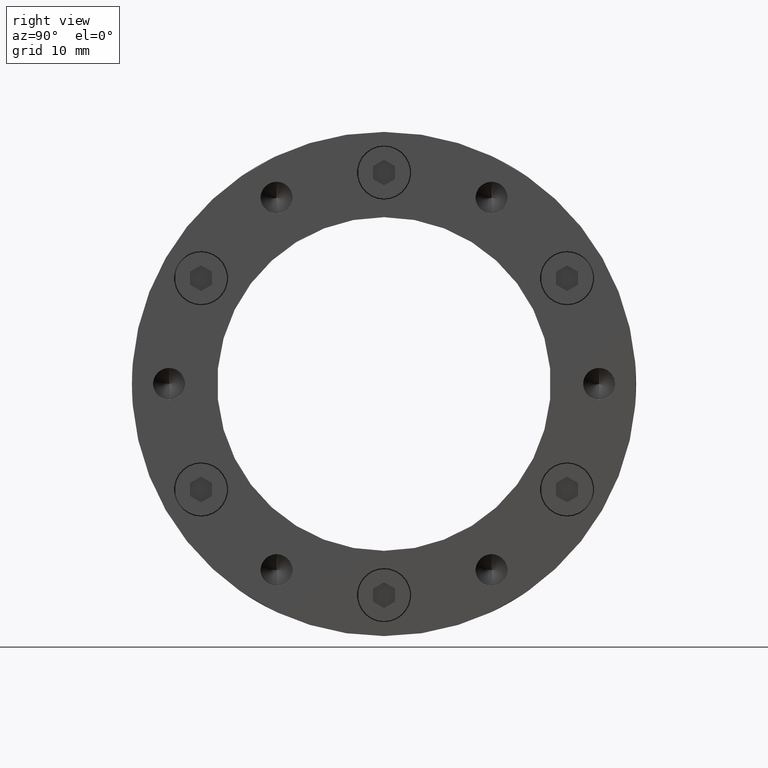
[diagram: clean part render]
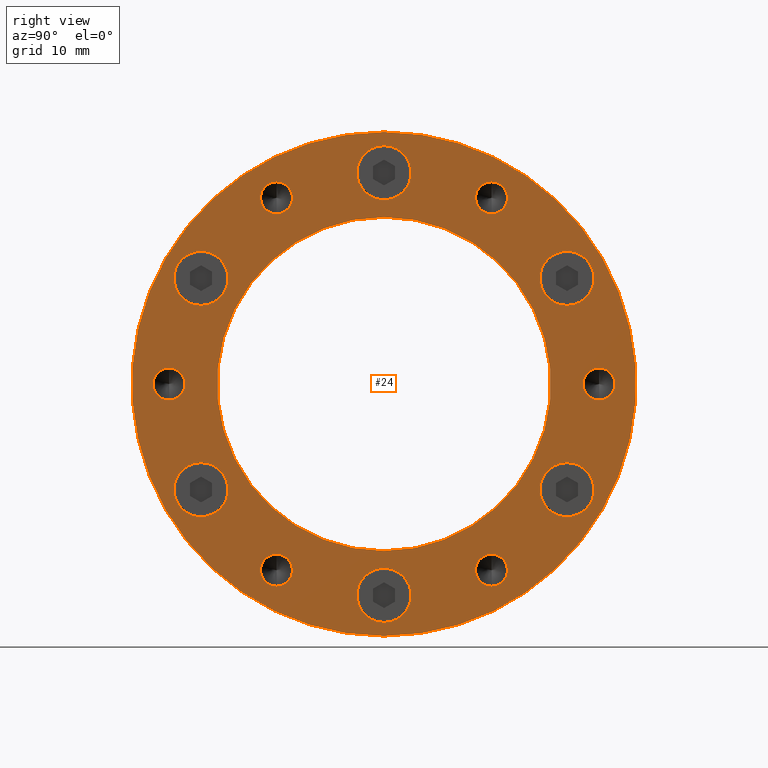
[diagram: same view with one face highlighted and labeled with its STEP entity id]
A machine part, right view. The second image highlights one B-rep face of the part: STEP entity #24.
In plain terms, the highlighted planar face has unit normal (1, 0, 0).
Its self-contained STEP definition (entity closure, byte-faithful):
#24 = ADVANCED_FACE ( 'NONE', ( #181, #189, #185, #183, #187, #190, #191, #192, #193, #194, #195, #196, #197, #198 ), #1310, .T. ) ;
#94 = VERTEX_POINT ( 'NONE', #1538 ) ;
#95 = VERTEX_POINT ( 'NONE', #1539 ) ;
#98 = VERTEX_POINT ( 'NONE', #1542 ) ;
#99 = VERTEX_POINT ( 'NONE', #1534 ) ;
#102 = VERTEX_POINT ( 'NONE', #1544 ) ;
#103 = VERTEX_POINT ( 'NONE', #1545 ) ;
#106 = VERTEX_POINT ( 'NONE', #1548 ) ;
#107 = VERTEX_POINT ( 'NONE', #1549 ) ;
#110 = VERTEX_POINT ( 'NONE', #1552 ) ;
#111 = VERTEX_POINT ( 'NONE', #1553 ) ;
#114 = VERTEX_POINT ( 'NONE', #1556 ) ;
#115 = VERTEX_POINT ( 'NONE', #1557 ) ;
#181 = FACE_BOUND ( 'NONE', #4557, .T. ) ;
#183 = FACE_BOUND ( 'NONE', #4566, .T. ) ;
#185 = FACE_BOUND ( 'NONE', #4571, .T. ) ;
#187 = FACE_BOUND ( 'NONE', #4562, .T. ) ;
#189 = FACE_BOUND ( 'NONE', #4572, .T. ) ;
#190 = FACE_BOUND ( 'NONE', #4576, .T. ) ;
#191 = FACE_BOUND ( 'NONE', #4529, .T. ) ;
#192 = FACE_BOUND ( 'NONE', #4568, .T. ) ;
#193 = FACE_BOUND ( 'NONE', #4548, .T. ) ;
#194 = FACE_BOUND ( 'NONE', #4532, .T. ) ;
#195 = FACE_BOUND ( 'NONE', #4552, .T. ) ;
#196 = FACE_BOUND ( 'NONE', #4534, .T. ) ;
#197 = FACE_BOUND ( 'NONE', #4561, .T. ) ;
#198 = FACE_OUTER_BOUND ( 'NONE', #4531, .T. ) ;
#426 = CIRCLE ( 'NONE', #1191, 3.649999999999998600 ) ;
#487 = CIRCLE ( 'NONE', #1204, 3.650000000000000400 ) ;
#639 = CIRCLE ( 'NONE', #1697, 34.00000000000000000 ) ;
#643 = CIRCLE ( 'NONE', #2035, 3.650000000000000400 ) ;
#644 = CIRCLE ( 'NONE', #2036, 3.650000000000000400 ) ;
#647 = CIRCLE ( 'NONE', #1700, 3.649999999999996800 ) ;
#649 = CIRCLE ( 'NONE', #1703, 22.50000000000000000 ) ;
#650 = CIRCLE ( 'NONE', #1702, 3.650000000000000400 ) ;
#659 = CIRCLE ( 'NONE', #1711, 3.649999999999998600 ) ;
#1045 = EDGE_CURVE ( 'NONE', #1867, #1871, #426, .T. ) ;
#1191 = AXIS2_PLACEMENT_3D ( 'NONE', #2505, #2506, #2507 ) ;
#1204 = AXIS2_PLACEMENT_3D ( 'NONE', #2590, #2591, #2592 ) ;
#1222 = EDGE_CURVE ( 'NONE', #1873, #1890, #487, .T. ) ;
#1305 = DIRECTION ( 'NONE',  ( 1.000000000000000000, -0.0000000000000000000, 0.0000000000000000000 ) ) ;
#1308 = CARTESIAN_POINT ( 'NONE',  ( 21.99999999999999300, 28.25000000000000000, 0.0000000000000000000 ) ) ;
#1310 = PLANE ( 'NONE',  #1808 ) ;
#1311 = DIRECTION ( 'NONE',  ( 0.0000000000000000000, 0.0000000000000000000, -1.000000000000000000 ) ) ;
#1534 = CARTESIAN_POINT ( 'NONE',  ( 21.99999999999999300, -29.00000000000000400, 2.149999999999982100 ) ) ;
#1538 = CARTESIAN_POINT ( 'NONE',  ( 21.99999999999999300, -14.50000000000002100, 22.96473670974872100 ) ) ;
#1539 = CARTESIAN_POINT ( 'NONE',  ( 21.99999999999999300, -14.50000000000002100, 27.26473670974871800 ) ) ;
#1542 = CARTESIAN_POINT ( 'NONE',  ( 21.99999999999999300, -29.00000000000000400, -2.150000000000017700 ) ) ;
#1544 = CARTESIAN_POINT ( 'NONE',  ( 21.99999999999999300, -14.49999999999999100, -27.26473670974872800 ) ) ;
#1545 = CARTESIAN_POINT ( 'NONE',  ( 21.99999999999999300, -14.49999999999999100, -22.96473670974873100 ) ) ;
#1548 = CARTESIAN_POINT ( 'NONE',  ( 21.99999999999999300, 14.50000000000002000, -27.26473670974872100 ) ) ;
#1549 = CARTESIAN_POINT ( 'NONE',  ( 21.99999999999999300, 14.50000000000002000, -22.96473670974872400 ) ) ;
#1552 = CARTESIAN_POINT ( 'NONE',  ( 21.99999999999999300, 29.00000000000000400, -2.149999999999993700 ) ) ;
#1553 = CARTESIAN_POINT ( 'NONE',  ( 21.99999999999999300, 29.00000000000000400, 2.150000000000006600 ) ) ;
#1556 = CARTESIAN_POINT ( 'NONE',  ( 21.99999999999999300, 14.50000000000001100, 22.96473670974873100 ) ) ;
#1557 = CARTESIAN_POINT ( 'NONE',  ( 21.99999999999999300, 14.50000000000001100, 27.26473670974872800 ) ) ;
#1697 = AXIS2_PLACEMENT_3D ( 'NONE', #3115, #3116, #3117 ) ;
#1700 = AXIS2_PLACEMENT_3D ( 'NONE', #3124, #3125, #3126 ) ;
#1702 = AXIS2_PLACEMENT_3D ( 'NONE', #3130, #3131, #3132 ) ;
#1703 = AXIS2_PLACEMENT_3D ( 'NONE', #3133, #3134, #3135 ) ;
#1711 = AXIS2_PLACEMENT_3D ( 'NONE', #3157, #3158, #3159 ) ;
#1727 = AXIS2_PLACEMENT_3D ( 'NONE', #3211, #3212, #3213 ) ;
#1729 = AXIS2_PLACEMENT_3D ( 'NONE', #3219, #3220, #3221 ) ;
#1753 = AXIS2_PLACEMENT_3D ( 'NONE', #3992, #3993, #3994 ) ;
#1754 = AXIS2_PLACEMENT_3D ( 'NONE', #3995, #3996, #3997 ) ;
#1755 = AXIS2_PLACEMENT_3D ( 'NONE', #3998, #3999, #4000 ) ;
#1756 = AXIS2_PLACEMENT_3D ( 'NONE', #4001, #4002, #4003 ) ;
#1757 = AXIS2_PLACEMENT_3D ( 'NONE', #4004, #4005, #4006 ) ;
#1758 = AXIS2_PLACEMENT_3D ( 'NONE', #4007, #4008, #4009 ) ;
#1808 = AXIS2_PLACEMENT_3D ( 'NONE', #1308, #1305, #1311 ) ;
#1859 = VERTEX_POINT ( 'NONE', #2851 ) ;
#1866 = VERTEX_POINT ( 'NONE', #2856 ) ;
#1867 = VERTEX_POINT ( 'NONE', #2895 ) ;
#1868 = VERTEX_POINT ( 'NONE', #2896 ) ;
#1869 = VERTEX_POINT ( 'NONE', #2897 ) ;
#1870 = VERTEX_POINT ( 'NONE', #2898 ) ;
#1871 = VERTEX_POINT ( 'NONE', #2899 ) ;
#1872 = VERTEX_POINT ( 'NONE', #2900 ) ;
#1873 = VERTEX_POINT ( 'NONE', #2901 ) ;
#1875 = VERTEX_POINT ( 'NONE', #2903 ) ;
#1879 = VERTEX_POINT ( 'NONE', #2907 ) ;
#1887 = VERTEX_POINT ( 'NONE', #2915 ) ;
#1890 = VERTEX_POINT ( 'NONE', #2918 ) ;
#1893 = VERTEX_POINT ( 'NONE', #2921 ) ;
#1894 = VERTEX_POINT ( 'NONE', #2922 ) ;
#1895 = VERTEX_POINT ( 'NONE', #2923 ) ;
#2035 = AXIS2_PLACEMENT_3D ( 'NONE', #3109, #3110, #3111 ) ;
#2036 = AXIS2_PLACEMENT_3D ( 'NONE', #3112, #3113, #3114 ) ;
#2222 = ORIENTED_EDGE ( 'NONE', *, *, #3610, .T. ) ;
#2223 = ORIENTED_EDGE ( 'NONE', *, *, #2361, .T. ) ;
#2224 = ORIENTED_EDGE ( 'NONE', *, *, #1222, .T. ) ;
#2225 = ORIENTED_EDGE ( 'NONE', *, *, #2353, .T. ) ;
#2226 = ORIENTED_EDGE ( 'NONE', *, *, #1045, .T. ) ;
#2227 = ORIENTED_EDGE ( 'NONE', *, *, #2369, .T. ) ;
#2231 = ORIENTED_EDGE ( 'NONE', *, *, #2358, .T. ) ;
#2232 = ORIENTED_EDGE ( 'NONE', *, *, #4629, .T. ) ;
#2233 = ORIENTED_EDGE ( 'NONE', *, *, #2360, .T. ) ;
#2234 = ORIENTED_EDGE ( 'NONE', *, *, #3612, .T. ) ;
#2235 = ORIENTED_EDGE ( 'NONE', *, *, #2354, .T. ) ;
#2236 = ORIENTED_EDGE ( 'NONE', *, *, #4625, .T. ) ;
#2237 = ORIENTED_EDGE ( 'NONE', *, *, #4591, .T. ) ;
#2238 = ORIENTED_EDGE ( 'NONE', *, *, #4637, .T. ) ;
#2239 = ORIENTED_EDGE ( 'NONE', *, *, #4589, .T. ) ;
#2240 = ORIENTED_EDGE ( 'NONE', *, *, #4645, .T. ) ;
#2241 = ORIENTED_EDGE ( 'NONE', *, *, #4587, .T. ) ;
#2242 = ORIENTED_EDGE ( 'NONE', *, *, #4649, .T. ) ;
#2245 = ORIENTED_EDGE ( 'NONE', *, *, #4633, .T. ) ;
#2246 = ORIENTED_EDGE ( 'NONE', *, *, #4653, .T. ) ;
#2247 = ORIENTED_EDGE ( 'NONE', *, *, #4585, .T. ) ;
#2248 = ORIENTED_EDGE ( 'NONE', *, *, #4657, .T. ) ;
#2249 = ORIENTED_EDGE ( 'NONE', *, *, #4641, .T. ) ;
#2250 = ORIENTED_EDGE ( 'NONE', *, *, #4588, .T. ) ;
#2251 = ORIENTED_EDGE ( 'NONE', *, *, #4586, .T. ) ;
#2252 = ORIENTED_EDGE ( 'NONE', *, *, #2355, .F. ) ;
#2253 = ORIENTED_EDGE ( 'NONE', *, *, #4613, .F. ) ;
#2260 = ORIENTED_EDGE ( 'NONE', *, *, #4584, .T. ) ;
#2353 = EDGE_CURVE ( 'NONE', #1890, #1873, #643, .T. ) ;
#2354 = EDGE_CURVE ( 'NONE', #1895, #1875, #644, .T. ) ;
#2355 = EDGE_CURVE ( 'NONE', #1879, #1894, #639, .T. ) ;
#2358 = EDGE_CURVE ( 'NONE', #1869, #1866, #647, .T. ) ;
#2360 = EDGE_CURVE ( 'NONE', #1872, #1870, #650, .T. ) ;
#2361 = EDGE_CURVE ( 'NONE', #1893, #1887, #649, .T. ) ;
#2369 = EDGE_CURVE ( 'NONE', #1871, #1867, #659, .T. ) ;
#2505 = CARTESIAN_POINT ( 'NONE',  ( 21.99999999999999300, -24.68172400785651300, -14.25000000000000400 ) ) ;
#2506 = DIRECTION ( 'NONE',  ( -1.000000000000000000, -0.0000000000000000000, -0.0000000000000000000 ) ) ;
#2507 = DIRECTION ( 'NONE',  ( 0.0000000000000000000, 0.0000000000000000000, -1.000000000000000000 ) ) ;
#2590 = CARTESIAN_POINT ( 'NONE',  ( 21.99999999999999300, -24.68172400785650900, 14.25000000000000700 ) ) ;
#2591 = DIRECTION ( 'NONE',  ( -1.000000000000000000, -0.0000000000000000000, -0.0000000000000000000 ) ) ;
#2592 = DIRECTION ( 'NONE',  ( 0.0000000000000000000, 0.0000000000000000000, -1.000000000000000000 ) ) ;
#2851 = CARTESIAN_POINT ( 'NONE',  ( 21.99999999999999300, 24.68172400785652700, 17.89999999999998400 ) ) ;
#2856 = CARTESIAN_POINT ( 'NONE',  ( 21.99999999999999300, -4.440891999999999900E-015, -32.15000000000001300 ) ) ;
#2895 = CARTESIAN_POINT ( 'NONE',  ( 21.99999999999999300, -24.68172400785651300, -17.90000000000000200 ) ) ;
#2896 = CARTESIAN_POINT ( 'NONE',  ( 21.99999999999999300, 24.68172400785652700, 10.59999999999998500 ) ) ;
#2897 = CARTESIAN_POINT ( 'NONE',  ( 21.99999999999999300, -3.993895918311216500E-015, -24.85000000000001600 ) ) ;
#2898 = CARTESIAN_POINT ( 'NONE',  ( 21.99999999999999300, 24.68172400785650600, -17.90000000000001600 ) ) ;
#2899 = CARTESIAN_POINT ( 'NONE',  ( 21.99999999999999300, -24.68172400785651300, -10.60000000000000300 ) ) ;
#2900 = CARTESIAN_POINT ( 'NONE',  ( 21.99999999999999300, 24.68172400785650600, -10.60000000000001600 ) ) ;
#2901 = CARTESIAN_POINT ( 'NONE',  ( 21.99999999999999300, -24.68172400785650900, 10.60000000000000700 ) ) ;
#2903 = CARTESIAN_POINT ( 'NONE',  ( 21.99999999999999300, 0.0000000000000000000, 24.85000000000001200 ) ) ;
#2907 = CARTESIAN_POINT ( 'NONE',  ( 21.99999999999999300, 0.0000000000000000000, -34.00000000000000000 ) ) ;
#2915 = CARTESIAN_POINT ( 'NONE',  ( 21.99999999999999300, 0.0000000000000000000, -22.50000000000000000 ) ) ;
#2918 = CARTESIAN_POINT ( 'NONE',  ( 21.99999999999999300, -24.68172400785650900, 17.90000000000000600 ) ) ;
#2921 = CARTESIAN_POINT ( 'NONE',  ( 21.99999999999999300, 2.755455298081544800E-015, 22.50000000000000000 ) ) ;
#2922 = CARTESIAN_POINT ( 'NONE',  ( 21.99999999999999300, 4.163799117101000600E-015, 34.00000000000000000 ) ) ;
#2923 = CARTESIAN_POINT ( 'NONE',  ( 21.99999999999999300, 4.469960816887838400E-016, 32.15000000000001300 ) ) ;
#3109 = CARTESIAN_POINT ( 'NONE',  ( 21.99999999999999300, -24.68172400785650900, 14.25000000000000700 ) ) ;
#3110 = DIRECTION ( 'NONE',  ( -1.000000000000000000, -0.0000000000000000000, -0.0000000000000000000 ) ) ;
#3111 = DIRECTION ( 'NONE',  ( 0.0000000000000000000, 0.0000000000000000000, -1.000000000000000000 ) ) ;
#3112 = CARTESIAN_POINT ( 'NONE',  ( 21.99999999999999300, 0.0000000000000000000, 28.50000000000001100 ) ) ;
#3113 = DIRECTION ( 'NONE',  ( -1.000000000000000000, -0.0000000000000000000, -0.0000000000000000000 ) ) ;
#3114 = DIRECTION ( 'NONE',  ( 0.0000000000000000000, 0.0000000000000000000, -1.000000000000000000 ) ) ;
#3115 = CARTESIAN_POINT ( 'NONE',  ( 21.99999999999999300, 0.0000000000000000000, 0.0000000000000000000 ) ) ;
#3116 = DIRECTION ( 'NONE',  ( -1.000000000000000000, -0.0000000000000000000, -0.0000000000000000000 ) ) ;
#3117 = DIRECTION ( 'NONE',  ( 0.0000000000000000000, 0.0000000000000000000, -1.000000000000000000 ) ) ;
#3124 = CARTESIAN_POINT ( 'NONE',  ( 21.99999999999999300, -4.440891999999999900E-015, -28.50000000000001400 ) ) ;
#3125 = DIRECTION ( 'NONE',  ( -1.000000000000000000, -0.0000000000000000000, -0.0000000000000000000 ) ) ;
#3126 = DIRECTION ( 'NONE',  ( 0.0000000000000000000, 0.0000000000000000000, -1.000000000000000000 ) ) ;
#3130 = CARTESIAN_POINT ( 'NONE',  ( 21.99999999999999300, 24.68172400785650600, -14.25000000000001600 ) ) ;
#3131 = DIRECTION ( 'NONE',  ( -1.000000000000000000, -0.0000000000000000000, -0.0000000000000000000 ) ) ;
#3132 = DIRECTION ( 'NONE',  ( 0.0000000000000000000, 0.0000000000000000000, -1.000000000000000000 ) ) ;
#3133 = CARTESIAN_POINT ( 'NONE',  ( 21.99999999999999300, 0.0000000000000000000, 0.0000000000000000000 ) ) ;
#3134 = DIRECTION ( 'NONE',  ( -1.000000000000000000, -0.0000000000000000000, -0.0000000000000000000 ) ) ;
#3135 = DIRECTION ( 'NONE',  ( 0.0000000000000000000, 0.0000000000000000000, -1.000000000000000000 ) ) ;
#3157 = CARTESIAN_POINT ( 'NONE',  ( 21.99999999999999300, -24.68172400785651300, -14.25000000000000400 ) ) ;
#3158 = DIRECTION ( 'NONE',  ( -1.000000000000000000, -0.0000000000000000000, -0.0000000000000000000 ) ) ;
#3159 = DIRECTION ( 'NONE',  ( 0.0000000000000000000, 0.0000000000000000000, -1.000000000000000000 ) ) ;
#3211 = CARTESIAN_POINT ( 'NONE',  ( 21.99999999999999300, 0.0000000000000000000, 0.0000000000000000000 ) ) ;
#3212 = DIRECTION ( 'NONE',  ( -1.000000000000000000, -0.0000000000000000000, -0.0000000000000000000 ) ) ;
#3213 = DIRECTION ( 'NONE',  ( 0.0000000000000000000, 0.0000000000000000000, -1.000000000000000000 ) ) ;
#3219 = CARTESIAN_POINT ( 'NONE',  ( 21.99999999999999300, 0.0000000000000000000, 28.50000000000001100 ) ) ;
#3220 = DIRECTION ( 'NONE',  ( -1.000000000000000000, -0.0000000000000000000, -0.0000000000000000000 ) ) ;
#3221 = DIRECTION ( 'NONE',  ( 0.0000000000000000000, 0.0000000000000000000, -1.000000000000000000 ) ) ;
#3610 = EDGE_CURVE ( 'NONE', #1887, #1893, #3719, .T. ) ;
#3612 = EDGE_CURVE ( 'NONE', #1875, #1895, #3723, .T. ) ;
#3719 = CIRCLE ( 'NONE', #1727, 22.50000000000000000 ) ;
#3723 = CIRCLE ( 'NONE', #1729, 3.650000000000000400 ) ;
#3783 = CIRCLE ( 'NONE', #1753, 2.149999999999999000 ) ;
#3784 = CIRCLE ( 'NONE', #1754, 2.149999999999999900 ) ;
#3785 = CIRCLE ( 'NONE', #1755, 2.149999999999999000 ) ;
#3786 = CIRCLE ( 'NONE', #1756, 2.149999999999999000 ) ;
#3787 = CIRCLE ( 'NONE', #1757, 2.149999999999999900 ) ;
#3788 = CIRCLE ( 'NONE', #1758, 2.149999999999999000 ) ;
#3790 = CIRCLE ( 'NONE', #4672, 3.650000000000000400 ) ;
#3821 = CIRCLE ( 'NONE', #4680, 34.00000000000000000 ) ;
#3835 = CIRCLE ( 'NONE', #4684, 3.649999999999996800 ) ;
#3841 = CIRCLE ( 'NONE', #4686, 3.650000000000000400 ) ;
#3847 = CIRCLE ( 'NONE', #4688, 3.650000000000000400 ) ;
#3855 = CIRCLE ( 'NONE', #4690, 2.149999999999999000 ) ;
#3861 = CIRCLE ( 'NONE', #4692, 2.149999999999999900 ) ;
#3867 = CIRCLE ( 'NONE', #4694, 2.149999999999999000 ) ;
#3873 = CIRCLE ( 'NONE', #4696, 2.149999999999999000 ) ;
#3879 = CIRCLE ( 'NONE', #4698, 2.149999999999999900 ) ;
#3885 = CIRCLE ( 'NONE', #4700, 2.149999999999999000 ) ;
#3992 = CARTESIAN_POINT ( 'NONE',  ( 21.99999999999999300, 14.50000000000001100, 25.11473670974873000 ) ) ;
#3993 = DIRECTION ( 'NONE',  ( -1.000000000000000000, -0.0000000000000000000, -0.0000000000000000000 ) ) ;
#3994 = DIRECTION ( 'NONE',  ( 0.0000000000000000000, 0.0000000000000000000, -1.000000000000000000 ) ) ;
#3995 = CARTESIAN_POINT ( 'NONE',  ( 21.99999999999999300, 29.00000000000000400, 6.661337999999999900E-015 ) ) ;
#3996 = DIRECTION ( 'NONE',  ( -1.000000000000000000, -0.0000000000000000000, -0.0000000000000000000 ) ) ;
#3997 = DIRECTION ( 'NONE',  ( 0.0000000000000000000, 0.0000000000000000000, -1.000000000000000000 ) ) ;
#3998 = CARTESIAN_POINT ( 'NONE',  ( 21.99999999999999300, 14.50000000000002000, -25.11473670974872300 ) ) ;
#3999 = DIRECTION ( 'NONE',  ( -1.000000000000000000, -0.0000000000000000000, -0.0000000000000000000 ) ) ;
#4000 = DIRECTION ( 'NONE',  ( 0.0000000000000000000, 0.0000000000000000000, -1.000000000000000000 ) ) ;
#4001 = CARTESIAN_POINT ( 'NONE',  ( 21.99999999999999300, -14.49999999999999100, -25.11473670974873000 ) ) ;
#4002 = DIRECTION ( 'NONE',  ( -1.000000000000000000, -0.0000000000000000000, -0.0000000000000000000 ) ) ;
#4003 = DIRECTION ( 'NONE',  ( 0.0000000000000000000, 0.0000000000000000000, -1.000000000000000000 ) ) ;
#4004 = CARTESIAN_POINT ( 'NONE',  ( 21.99999999999999300, -29.00000000000000400, -1.776356999999999900E-014 ) ) ;
#4005 = DIRECTION ( 'NONE',  ( -1.000000000000000000, -0.0000000000000000000, -0.0000000000000000000 ) ) ;
#4006 = DIRECTION ( 'NONE',  ( 0.0000000000000000000, 0.0000000000000000000, -1.000000000000000000 ) ) ;
#4007 = CARTESIAN_POINT ( 'NONE',  ( 21.99999999999999300, -14.50000000000002100, 25.11473670974871900 ) ) ;
#4008 = DIRECTION ( 'NONE',  ( -1.000000000000000000, -0.0000000000000000000, -0.0000000000000000000 ) ) ;
#4009 = DIRECTION ( 'NONE',  ( 0.0000000000000000000, 0.0000000000000000000, -1.000000000000000000 ) ) ;
#4014 = CARTESIAN_POINT ( 'NONE',  ( 21.99999999999999300, 24.68172400785652700, 14.24999999999998600 ) ) ;
#4015 = DIRECTION ( 'NONE',  ( -1.000000000000000000, -0.0000000000000000000, -0.0000000000000000000 ) ) ;
#4016 = DIRECTION ( 'NONE',  ( 0.0000000000000000000, 0.0000000000000000000, -1.000000000000000000 ) ) ;
#4065 = CARTESIAN_POINT ( 'NONE',  ( 21.99999999999999300, 0.0000000000000000000, 0.0000000000000000000 ) ) ;
#4066 = DIRECTION ( 'NONE',  ( -1.000000000000000000, -0.0000000000000000000, -0.0000000000000000000 ) ) ;
#4067 = DIRECTION ( 'NONE',  ( 0.0000000000000000000, 0.0000000000000000000, -1.000000000000000000 ) ) ;
#4222 = CARTESIAN_POINT ( 'NONE',  ( 21.99999999999999300, -4.440891999999999900E-015, -28.50000000000001400 ) ) ;
#4223 = DIRECTION ( 'NONE',  ( -1.000000000000000000, -0.0000000000000000000, -0.0000000000000000000 ) ) ;
#4224 = DIRECTION ( 'NONE',  ( 0.0000000000000000000, 0.0000000000000000000, -1.000000000000000000 ) ) ;
#4232 = CARTESIAN_POINT ( 'NONE',  ( 21.99999999999999300, 24.68172400785650600, -14.25000000000001600 ) ) ;
#4233 = DIRECTION ( 'NONE',  ( -1.000000000000000000, -0.0000000000000000000, -0.0000000000000000000 ) ) ;
#4234 = DIRECTION ( 'NONE',  ( 0.0000000000000000000, 0.0000000000000000000, -1.000000000000000000 ) ) ;
#4241 = CARTESIAN_POINT ( 'NONE',  ( 21.99999999999999300, 24.68172400785652700, 14.24999999999998600 ) ) ;
#4242 = DIRECTION ( 'NONE',  ( -1.000000000000000000, -0.0000000000000000000, -0.0000000000000000000 ) ) ;
#4243 = DIRECTION ( 'NONE',  ( 0.0000000000000000000, 0.0000000000000000000, -1.000000000000000000 ) ) ;
#4251 = CARTESIAN_POINT ( 'NONE',  ( 21.99999999999999300, -14.50000000000002100, 25.11473670974871900 ) ) ;
#4252 = DIRECTION ( 'NONE',  ( -1.000000000000000000, -0.0000000000000000000, -0.0000000000000000000 ) ) ;
#4253 = DIRECTION ( 'NONE',  ( 0.0000000000000000000, 0.0000000000000000000, -1.000000000000000000 ) ) ;
#4261 = CARTESIAN_POINT ( 'NONE',  ( 21.99999999999999300, -29.00000000000000400, -1.776356999999999900E-014 ) ) ;
#4262 = DIRECTION ( 'NONE',  ( -1.000000000000000000, -0.0000000000000000000, -0.0000000000000000000 ) ) ;
#4263 = DIRECTION ( 'NONE',  ( 0.0000000000000000000, 0.0000000000000000000, -1.000000000000000000 ) ) ;
#4271 = CARTESIAN_POINT ( 'NONE',  ( 21.99999999999999300, -14.49999999999999100, -25.11473670974873000 ) ) ;
#4272 = DIRECTION ( 'NONE',  ( -1.000000000000000000, -0.0000000000000000000, -0.0000000000000000000 ) ) ;
#4273 = DIRECTION ( 'NONE',  ( 0.0000000000000000000, 0.0000000000000000000, -1.000000000000000000 ) ) ;
#4281 = CARTESIAN_POINT ( 'NONE',  ( 21.99999999999999300, 14.50000000000002000, -25.11473670974872300 ) ) ;
#4282 = DIRECTION ( 'NONE',  ( -1.000000000000000000, -0.0000000000000000000, -0.0000000000000000000 ) ) ;
#4283 = DIRECTION ( 'NONE',  ( 0.0000000000000000000, 0.0000000000000000000, -1.000000000000000000 ) ) ;
#4291 = CARTESIAN_POINT ( 'NONE',  ( 21.99999999999999300, 29.00000000000000400, 6.661337999999999900E-015 ) ) ;
#4292 = DIRECTION ( 'NONE',  ( -1.000000000000000000, -0.0000000000000000000, -0.0000000000000000000 ) ) ;
#4293 = DIRECTION ( 'NONE',  ( 0.0000000000000000000, 0.0000000000000000000, -1.000000000000000000 ) ) ;
#4303 = CARTESIAN_POINT ( 'NONE',  ( 21.99999999999999300, 14.50000000000001100, 25.11473670974873000 ) ) ;
#4304 = DIRECTION ( 'NONE',  ( -1.000000000000000000, -0.0000000000000000000, -0.0000000000000000000 ) ) ;
#4305 = DIRECTION ( 'NONE',  ( 0.0000000000000000000, 0.0000000000000000000, -1.000000000000000000 ) ) ;
#4529 = EDGE_LOOP ( 'NONE', ( #2245, #2237 ) ) ;
#4531 = EDGE_LOOP ( 'NONE', ( #2252, #2253 ) ) ;
#4532 = EDGE_LOOP ( 'NONE', ( #2240, #2241 ) ) ;
#4534 = EDGE_LOOP ( 'NONE', ( #2246, #2247 ) ) ;
#4548 = EDGE_LOOP ( 'NONE', ( #2249, #2250 ) ) ;
#4552 = EDGE_LOOP ( 'NONE', ( #2242, #2251 ) ) ;
#4557 = EDGE_LOOP ( 'NONE', ( #2222, #2223 ) ) ;
#4561 = EDGE_LOOP ( 'NONE', ( #2248, #2260 ) ) ;
#4562 = EDGE_LOOP ( 'NONE', ( #2236, #2231 ) ) ;
#4566 = EDGE_LOOP ( 'NONE', ( #2226, #2227 ) ) ;
#4568 = EDGE_LOOP ( 'NONE', ( #2238, #2239 ) ) ;
#4571 = EDGE_LOOP ( 'NONE', ( #2224, #2225 ) ) ;
#4572 = EDGE_LOOP ( 'NONE', ( #2234, #2235 ) ) ;
#4576 = EDGE_LOOP ( 'NONE', ( #2232, #2233 ) ) ;
#4584 = EDGE_CURVE ( 'NONE', #115, #114, #3783, .T. ) ;
#4585 = EDGE_CURVE ( 'NONE', #111, #110, #3784, .T. ) ;
#4586 = EDGE_CURVE ( 'NONE', #107, #106, #3785, .T. ) ;
#4587 = EDGE_CURVE ( 'NONE', #103, #102, #3786, .T. ) ;
#4588 = EDGE_CURVE ( 'NONE', #99, #98, #3787, .T. ) ;
#4589 = EDGE_CURVE ( 'NONE', #95, #94, #3788, .T. ) ;
#4591 = EDGE_CURVE ( 'NONE', #1859, #1868, #3790, .T. ) ;
#4613 = EDGE_CURVE ( 'NONE', #1894, #1879, #3821, .T. ) ;
#4625 = EDGE_CURVE ( 'NONE', #1866, #1869, #3835, .T. ) ;
#4629 = EDGE_CURVE ( 'NONE', #1870, #1872, #3841, .T. ) ;
#4633 = EDGE_CURVE ( 'NONE', #1868, #1859, #3847, .T. ) ;
#4637 = EDGE_CURVE ( 'NONE', #94, #95, #3855, .T. ) ;
#4641 = EDGE_CURVE ( 'NONE', #98, #99, #3861, .T. ) ;
#4645 = EDGE_CURVE ( 'NONE', #102, #103, #3867, .T. ) ;
#4649 = EDGE_CURVE ( 'NONE', #106, #107, #3873, .T. ) ;
#4653 = EDGE_CURVE ( 'NONE', #110, #111, #3879, .T. ) ;
#4657 = EDGE_CURVE ( 'NONE', #114, #115, #3885, .T. ) ;
#4672 = AXIS2_PLACEMENT_3D ( 'NONE', #4014, #4015, #4016 ) ;
#4680 = AXIS2_PLACEMENT_3D ( 'NONE', #4065, #4066, #4067 ) ;
#4684 = AXIS2_PLACEMENT_3D ( 'NONE', #4222, #4223, #4224 ) ;
#4686 = AXIS2_PLACEMENT_3D ( 'NONE', #4232, #4233, #4234 ) ;
#4688 = AXIS2_PLACEMENT_3D ( 'NONE', #4241, #4242, #4243 ) ;
#4690 = AXIS2_PLACEMENT_3D ( 'NONE', #4251, #4252, #4253 ) ;
#4692 = AXIS2_PLACEMENT_3D ( 'NONE', #4261, #4262, #4263 ) ;
#4694 = AXIS2_PLACEMENT_3D ( 'NONE', #4271, #4272, #4273 ) ;
#4696 = AXIS2_PLACEMENT_3D ( 'NONE', #4281, #4282, #4283 ) ;
#4698 = AXIS2_PLACEMENT_3D ( 'NONE', #4291, #4292, #4293 ) ;
#4700 = AXIS2_PLACEMENT_3D ( 'NONE', #4303, #4304, #4305 ) ;